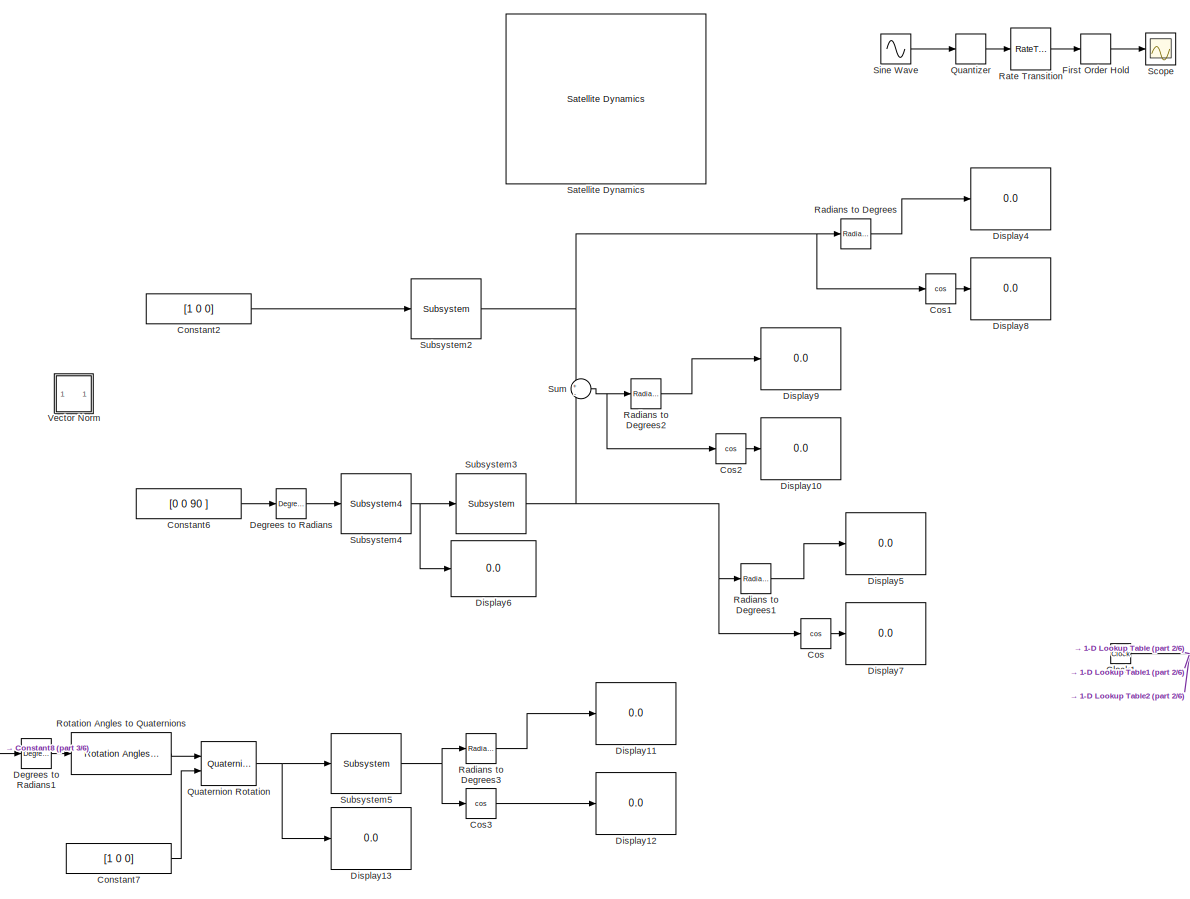
[diagram: root canvas - part 1/6, top left region]
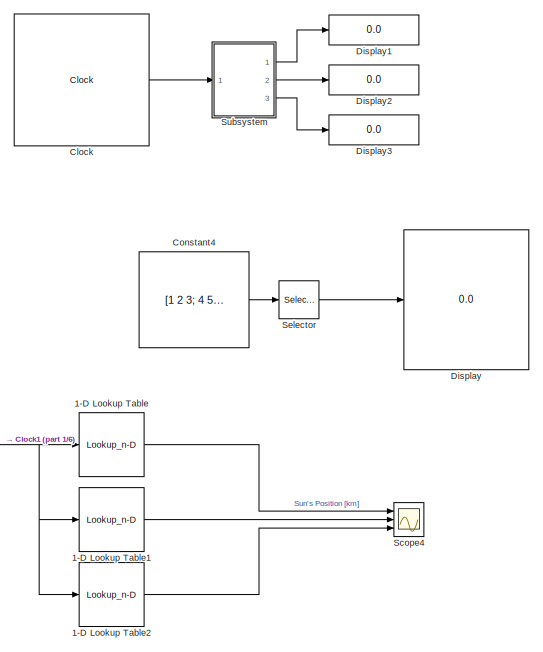
[diagram: root canvas - part 2/6, top center region]
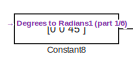
[diagram: root canvas - part 3/6, middle left region]
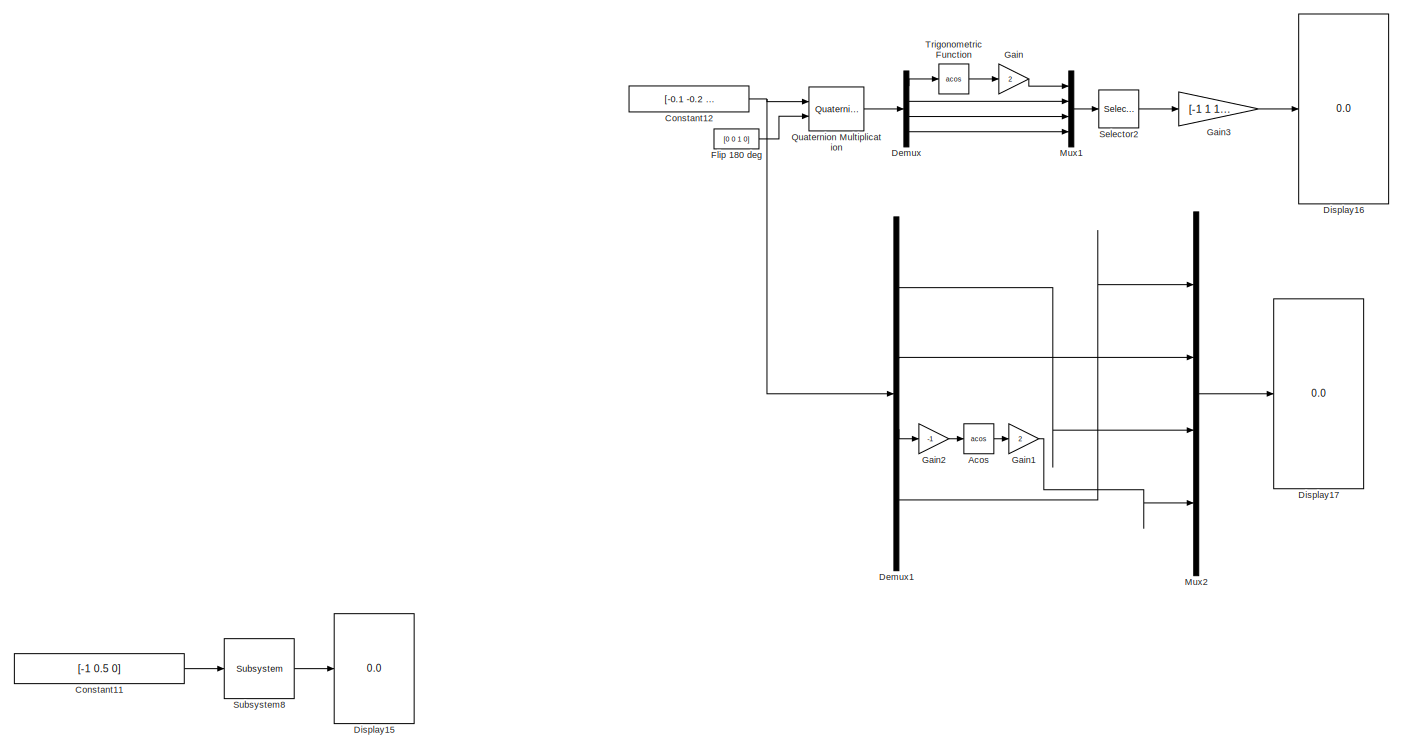
[diagram: root canvas - part 4/6, bottom right region]
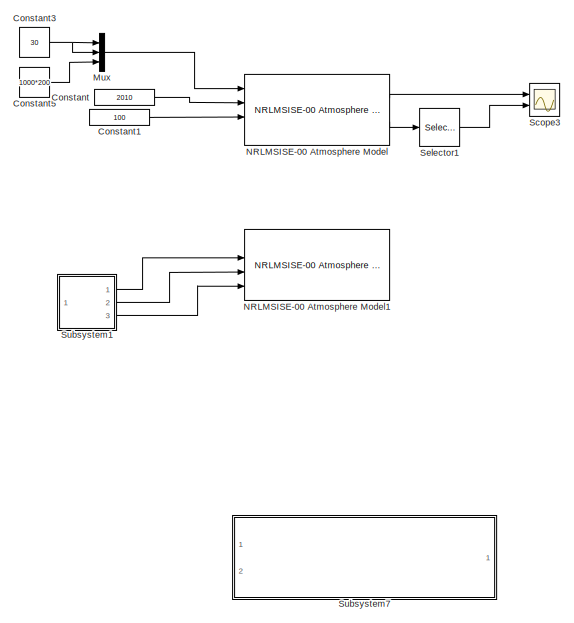
[diagram: root canvas - part 5/6, bottom center region]
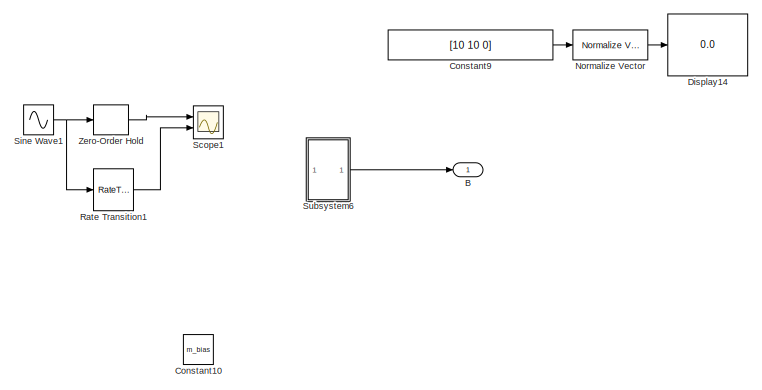
[diagram: root canvas - part 6/6, bottom left region]
MODEL slx_73f9de509a34
KIND model
CONFIG AbsTol = auto
CONFIG EnableMultiTasking = off
CONFIG FixedStep = 0.01
CONFIG MaxStep = auto
CONFIG MinStep = auto
CONFIG RelTol = 1e-3
CONFIG SampleTimeConstraint = Unconstrained
CONFIG Solver = FixedStepAuto
CONFIG SolverName = FixedStepAuto
CONFIG StartTime = 0.0
CONFIG StopTime = 30
BLOCK [Lookup_n-D] 1-D Lookup Table
  BreakpointsForDimension1 = [0:dT:TFinal]
  Commented = on
  InternalRulePriority = Speed
  NumberOfTableDimensions = 1
  Ports = [1, 1]
  RndMeth = Simplest
  Table = sun_position(:,1)
BLOCK [Lookup_n-D] 1-D Lookup Table1
  BreakpointsForDimension1 = [0:dT:TFinal]
  Commented = on
  InternalRulePriority = Speed
  NumberOfTableDimensions = 1
  Ports = [1, 1]
  RndMeth = Simplest
  Table = sun_position(:,2)
BLOCK [Lookup_n-D] 1-D Lookup Table2
  BreakpointsForDimension1 = [0:dT:TFinal]
  Commented = on
  InternalRulePriority = Speed
  NumberOfTableDimensions = 1
  Ports = [1, 1]
  RndMeth = Simplest
  Table = sun_position(:,3)
BLOCK [Trigonometry] Acos
  Operator = acos
  Ports = [1, 1]
BLOCK [Outport] B
  IconDisplay = Port number
BLOCK [Clock] Clock
  Commented = on
  Decimation = 100
  DisplayTime = on
BLOCK [Clock] Clock1
  Commented = on
BLOCK [Constant] Constant
  Commented = on
  Value = 2010
BLOCK [Constant] Constant1
  Commented = on
  Value = 100
BLOCK [Constant] Constant10
  Commented = on
  Value = m_bias
BLOCK [Constant] Constant11
  Commented = on
  Value = [-1 0.5 0]
BLOCK [Constant] Constant12
  Value = [-0.1 -0.2 -0.3 -0.4]
BLOCK [Constant] Constant2
  Commented = on
  Value = [1 0 0]
BLOCK [Constant] Constant3
  Commented = on
  Value = 30
BLOCK [Constant] Constant4
  Commented = on
  Value = [1 2 3; 4 5 6]
BLOCK [Constant] Constant5
  Commented = on
  Value = 1000*200
BLOCK [Constant] Constant6
  Commented = on
  Value = [0 0 90 ]
BLOCK [Constant] Constant7
  Commented = on
  Value = [1 0 0]
BLOCK [Constant] Constant8
  Commented = on
  Value = [0 0 45 ]
BLOCK [Constant] Constant9
  Commented = on
  Value = [10 10 0]
BLOCK [Trigonometry] Cos
  Commented = on
  Operator = cos
  Ports = [1, 1]
BLOCK [Trigonometry] Cos1
  Commented = on
  Operator = cos
  Ports = [1, 1]
BLOCK [Trigonometry] Cos2
  Commented = on
  Operator = cos
  Ports = [1, 1]
BLOCK [Trigonometry] Cos3
  Commented = on
  Operator = cos
  Ports = [1, 1]
BLOCK [Reference] Degrees to Radians  REF=simulink_extras/Transformations/Degrees to
Radians
  Commented = on
  Ports = [1, 1]
  SourceBlock = simulink_extras/Transformations/Degrees to\nRadians
  SourceProductBaseCode = SL
  SourceProductName = Simulink
  SourceType = DegreesToRadians
BLOCK [Reference] Degrees to Radians1  REF=simulink_extras/Transformations/Degrees to
Radians
  Commented = on
  Ports = [1, 1]
  SourceBlock = simulink_extras/Transformations/Degrees to\nRadians
  SourceProductBaseCode = SL
  SourceProductName = Simulink
  SourceType = DegreesToRadians
BLOCK [Demux] Demux
  DisplayOption = bar
  Ports = [1, 4]
BLOCK [Demux] Demux1
  DisplayOption = bar
  Ports = [1, 4]
BLOCK [Display] Display
  Commented = on
  Decimation = 1
  Ports = [1]
BLOCK [Display] Display1
  Commented = on
  Decimation = 1
  Ports = [1]
BLOCK [Display] Display10
  Commented = on
  Decimation = 1
  Ports = [1]
BLOCK [Display] Display11
  Commented = on
  Decimation = 1
  Ports = [1]
BLOCK [Display] Display12
  Commented = on
  Decimation = 1
  Ports = [1]
BLOCK [Display] Display13
  Commented = on
  Decimation = 1
  Ports = [1]
BLOCK [Display] Display14
  Commented = on
  Decimation = 1
  Ports = [1]
BLOCK [Display] Display15
  Commented = on
  Decimation = 1
  Ports = [1]
BLOCK [Display] Display16
  Decimation = 1
  Ports = [1]
BLOCK [Display] Display17
  Decimation = 1
  Ports = [1]
BLOCK [Display] Display2
  Commented = on
  Decimation = 1
  Ports = [1]
BLOCK [Display] Display3
  Commented = on
  Decimation = 1
  Ports = [1]
BLOCK [Display] Display4
  Commented = on
  Decimation = 1
  Ports = [1]
BLOCK [Display] Display5
  Commented = on
  Decimation = 1
  Ports = [1]
BLOCK [Display] Display6
  Commented = on
  Decimation = 1
  Ports = [1]
BLOCK [Display] Display7
  Commented = on
  Decimation = 1
  Ports = [1]
BLOCK [Display] Display8
  Commented = on
  Decimation = 1
  Ports = [1]
BLOCK [Display] Display9
  Commented = on
  Decimation = 1
  Ports = [1]
BLOCK [FirstOrderHold] First Order Hold
  Commented = on
  ErrorTolerance = inf
BLOCK [Constant] Flip 180 deg
  Value = [0 0 1 0]
BLOCK [Gain] Gain
  Gain = 2
  OutDataTypeStr = Inherit: Inherit via internal rule
  ParamDataTypeStr = Inherit: Inherit via internal rule
  SaturateOnIntegerOverflow = off
BLOCK [Gain] Gain1
  Gain = 2
  OutDataTypeStr = Inherit: Inherit via internal rule
  ParamDataTypeStr = Inherit: Inherit via internal rule
  SaturateOnIntegerOverflow = off
BLOCK [Gain] Gain2
  Gain = -1
  OutDataTypeStr = Inherit: Inherit via internal rule
  ParamDataTypeStr = Inherit: Inherit via internal rule
  SaturateOnIntegerOverflow = off
BLOCK [Gain] Gain3
  Gain = [-1 1 1 1]
  OutDataTypeStr = Inherit: Inherit via internal rule
  ParamDataTypeStr = Inherit: Inherit via internal rule
  SaturateOnIntegerOverflow = off
BLOCK [Mux] Mux
  Commented = on
  DisplayOption = bar
  Inputs = 3
  Ports = [3, 1]
BLOCK [Mux] Mux1
  DisplayOption = bar
  Ports = [4, 1]
BLOCK [Mux] Mux2
  DisplayOption = bar
  Ports = [4, 1]
BLOCK [Reference] NRLMSISE-00 Atmosphere Model  REF=aerolibatmos2/NRLMSISE-00
Atmosphere Model
  Commented = on
  Ports = [4, 2]
  SourceBlock = aerolibatmos2/NRLMSISE-00\nAtmosphere Model
  SourceProductBaseCode = AE
  SourceProductName = Aerospace Blockset
  SourceType = NRLMSISE-00 Model
BLOCK [Reference] NRLMSISE-00 Atmosphere Model1  REF=aerolibatmos2/NRLMSISE-00
Atmosphere Model
  Commented = on
  Ports = [4, 2]
  SourceBlock = aerolibatmos2/NRLMSISE-00\nAtmosphere Model
  SourceProductBaseCode = AE
  SourceProductName = Aerospace Blockset
  SourceType = NRLMSISE-00 Model
BLOCK [Reference] Normalize Vector  REF=vrlib/Utilities/Normalize Vector
  Commented = on
  Ports = [1, 1]
  SourceBlock = vrlib/Utilities/Normalize Vector
  SourceProductBaseCode = SL
  SourceProductName = Simulink
  SourceType = Normalize Vector
BLOCK [Quantizer] Quantizer
  Commented = on
  QuantizationInterval = 0.01
BLOCK [Reference] Quaternion Multiplication  REF=aerolibutil/Quaternion
Multiplication
  Ports = [2, 1]
  SourceBlock = aerolibutil/Quaternion\nMultiplication
  SourceProductBaseCode = AE
  SourceProductName = Aerospace Blockset
  SourceType = Quaternion Multiplication
BLOCK [Reference] Quaternion Rotation  REF=aerolibutil/Quaternion
Rotation
  Commented = on
  Ports = [2, 1]
  SourceBlock = aerolibutil/Quaternion\nRotation
  SourceProductBaseCode = AE
  SourceProductName = Aerospace Blockset
  SourceType = Quaternion Rotation
BLOCK [Reference] Radians to Degrees  REF=simulink_extras/Transformations/Radians
to Degrees
  Commented = on
  Ports = [1, 1]
  SourceBlock = simulink_extras/Transformations/Radians\nto Degrees
  SourceProductBaseCode = SL
  SourceProductName = Simulink
  SourceType = RadiansToDegrees
BLOCK [Reference] Radians to Degrees1  REF=simulink_extras/Transformations/Radians
to Degrees
  Commented = on
  Ports = [1, 1]
  SourceBlock = simulink_extras/Transformations/Radians\nto Degrees
  SourceProductBaseCode = SL
  SourceProductName = Simulink
  SourceType = RadiansToDegrees
BLOCK [Reference] Radians to Degrees2  REF=simulink_extras/Transformations/Radians
to Degrees
  Commented = on
  Ports = [1, 1]
  SourceBlock = simulink_extras/Transformations/Radians\nto Degrees
  SourceProductBaseCode = SL
  SourceProductName = Simulink
  SourceType = RadiansToDegrees
BLOCK [Reference] Radians to Degrees3  REF=simulink_extras/Transformations/Radians
to Degrees
  Commented = on
  Ports = [1, 1]
  SourceBlock = simulink_extras/Transformations/Radians\nto Degrees
  SourceProductBaseCode = SL
  SourceProductName = Simulink
  SourceType = RadiansToDegrees
BLOCK [RateTransition] Rate Transition
  Commented = on
  OutPortSampleTime = 0.1
BLOCK [RateTransition] Rate Transition1
  Commented = on
  OutPortSampleTime = 0.3
BLOCK [Reference] Rotation Angles to Quaternions  REF=sharedtransform/Rotation Angles to Quaternions
  AttributesFormatString = Rotation Order: %<rotationOrder>
  Commented = on
  Ports = [1, 1]
  SourceBlock = sharedtransform/Rotation Angles to Quaternions
  SourceProductBaseCode = AE
  SourceProductName = Aerospace Blockset
  SourceType = Ang2Quat
BLOCK [Reference] Satellite Dynamics  REF=scars_library/Advanced/Satellite Dynamics  (lib defined in slx_0992aaab4a30)
  Commented = on
  Ports = [4, 1]
  SourceBlock = scars_library/Advanced/Satellite Dynamics
  SourceType = Sattellite Dynamics
BLOCK [Scope] Scope
  Commented = on
  Floating = off
  NumInputPorts = 1
  Ports = [1]
  ScopeSpecificationString = Simulink.scopes.TimeScopeBlockCfg('CurrentConfiguration', extmgr.ConfigurationSet(extmgr.Configuration('Core','General UI',true),extmgr.Configuration('Core','Source UI',true),extmgr.Configuration('Sources','WiredSimulink',true),extmgr.Configuration('Visuals','Time Domain',true,'SerializedDisplays',{struct('MinYLimReal','-1.24986','MaxYLimReal','1.24951','YLabelReal','','MinYLimMag','0.00000','MaxY...<+1366ch>
BLOCK [Scope] Scope1
  Commented = on
  Floating = off
  NumInputPorts = 2
  Ports = [2]
  ScopeSpecificationString = Simulink.scopes.TimeScopeBlockCfg('CurrentConfiguration', extmgr.ConfigurationSet(extmgr.Configuration('Core','General UI',true),extmgr.Configuration('Core','Source UI',true),extmgr.Configuration('Sources','WiredSimulink',true,'DataLoggingVariableName','ScopeData1'),extmgr.Configuration('Visuals','Time Domain',true,'SerializedDisplays',{struct('MinYLimReal','-1.2455','MaxYLimReal','1.24788','YLabe...<+1454ch>
BLOCK [Scope] Scope3
  Commented = on
  Floating = off
  NumInputPorts = 2
  Ports = [2]
  ScopeSpecificationString = Simulink.scopes.TimeScopeBlockCfg('CurrentConfiguration', extmgr.ConfigurationSet(extmgr.Configuration('Core','General UI',true),extmgr.Configuration('Core','Source UI',true),extmgr.Configuration('Sources','WiredSimulink',true,'DataLoggingVariableName','ScopeData2'),extmgr.Configuration('Visuals','Time Domain',true,'SerializedDisplays',{struct('MinYLimReal','69.74491','MaxYLimReal','1238.07333','Y...<+2511ch>
BLOCK [Scope] Scope4
  Commented = on
  Floating = off
  NumInputPorts = 3
  Ports = [3]
  ScopeSpecificationString = Simulink.scopes.TimeScopeBlockCfg('CurrentConfiguration', extmgr.ConfigurationSet(extmgr.Configuration('Core','General UI',true),extmgr.Configuration('Core','Source UI',true),extmgr.Configuration('Sources','WiredSimulink',true,'DataLoggingVariableName','ScopeData1'),extmgr.Configuration('Visuals','Time Domain',true,'SerializedDisplays',{struct('MinYLimReal','-187532987.97497','MaxYLimReal','186420...<+1533ch>
BLOCK [Selector] Selector
  Commented = on
  IndexOptions = Index vector (dialog),Select all
  Indices = 1,3
  InputPortWidth = 2
  NumberOfDimensions = 2
  OutputSizes = 1,1
  Ports = [1, 1]
BLOCK [Selector] Selector1
  Commented = on
  IndexOptions = Index vector (dialog)
  Indices = 6
  InputPortWidth = 9
  OutputSizes = 1
  Ports = [1, 1]
BLOCK [Selector] Selector2
  IndexOptions = Index vector (dialog)
  Indices = [2 4 3 1]
  InputPortWidth = 4
  OutputSizes = 1
  Ports = [1, 1]
BLOCK [Sin] Sine Wave
  Commented = on
  Ports = [0, 1]
  SampleTime = 0
BLOCK [Sin] Sine Wave1
  Commented = on
  Ports = [0, 1]
  SampleTime = 0
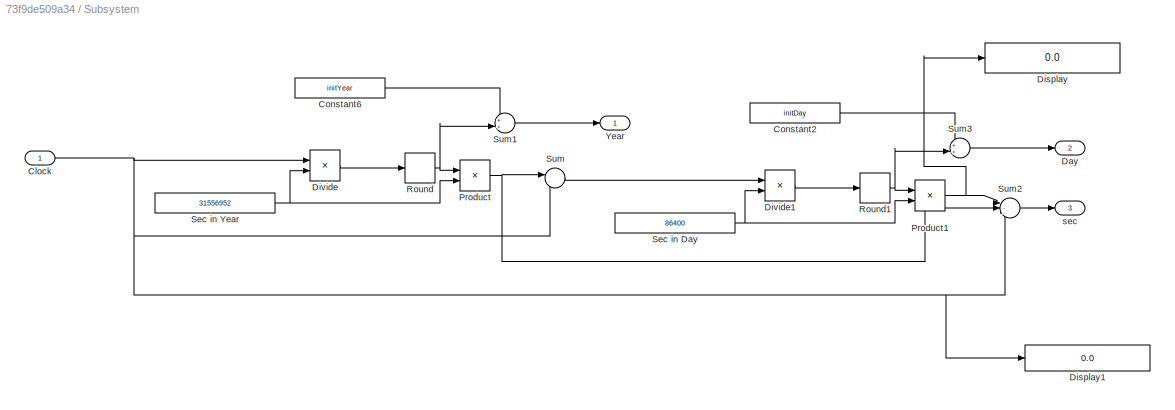
BLOCK [SubSystem] Subsystem
  Commented = on
  Ports = [1, 3]
  RequestExecContextInheritance = off
BLOCK [Inport] Subsystem/Clock
  IconDisplay = Port number
BLOCK [Constant] Subsystem/Constant2
  Value = initDay
BLOCK [Constant] Subsystem/Constant6
  Value = initYear
BLOCK [Outport] Subsystem/Day
  IconDisplay = Port number
  Port = 2
BLOCK [Display] Subsystem/Display
  Decimation = 1
  Format = long
  Ports = [1]
BLOCK [Display] Subsystem/Display1
  Decimation = 1
  Format = long
  Ports = [1]
BLOCK [Product] Subsystem/Divide
  InputSameDT = off
  Inputs = */
  OutDataTypeStr = Inherit: Inherit via internal rule
  Ports = [2, 1]
  RndMeth = Floor
  SaturateOnIntegerOverflow = off
BLOCK [Product] Subsystem/Divide1
  InputSameDT = off
  Inputs = */
  OutDataTypeStr = Inherit: Inherit via internal rule
  Ports = [2, 1]
  RndMeth = Floor
  SaturateOnIntegerOverflow = off
BLOCK [Product] Subsystem/Product
  InputSameDT = off
  OutDataTypeStr = Inherit: Inherit via internal rule
  Ports = [2, 1]
  RndMeth = Floor
  SaturateOnIntegerOverflow = off
BLOCK [Product] Subsystem/Product1
  InputSameDT = off
  OutDataTypeStr = Inherit: Inherit via internal rule
  Ports = [2, 1]
  RndMeth = Floor
  SaturateOnIntegerOverflow = off
BLOCK [Rounding] Subsystem/Round
BLOCK [Rounding] Subsystem/Round1
BLOCK [Constant] Subsystem/Sec in Day
  Value = 86400
BLOCK [Constant] Subsystem/Sec in Year
  Value = 31556952
BLOCK [Sum] Subsystem/Sum
  IconShape = round
  InputSameDT = off
  Inputs = |-+
  OutDataTypeStr = Inherit: Inherit via internal rule
  Ports = [2, 1]
  SaturateOnIntegerOverflow = off
BLOCK [Sum] Subsystem/Sum1
  IconShape = round
  InputSameDT = off
  Inputs = ++|
  OutDataTypeStr = Inherit: Inherit via internal rule
  Ports = [2, 1]
  SaturateOnIntegerOverflow = off
BLOCK [Sum] Subsystem/Sum2
  IconShape = round
  InputSameDT = off
  Inputs = |--+
  OutDataTypeStr = Inherit: Inherit via internal rule
  Ports = [3, 1]
  SaturateOnIntegerOverflow = off
BLOCK [Sum] Subsystem/Sum3
  IconShape = round
  InputSameDT = off
  Inputs = ++|
  OutDataTypeStr = Inherit: Inherit via internal rule
  Ports = [2, 1]
  SaturateOnIntegerOverflow = off
BLOCK [Outport] Subsystem/Year
  IconDisplay = Port number
BLOCK [Outport] Subsystem/sec
  IconDisplay = Port number
  Port = 3
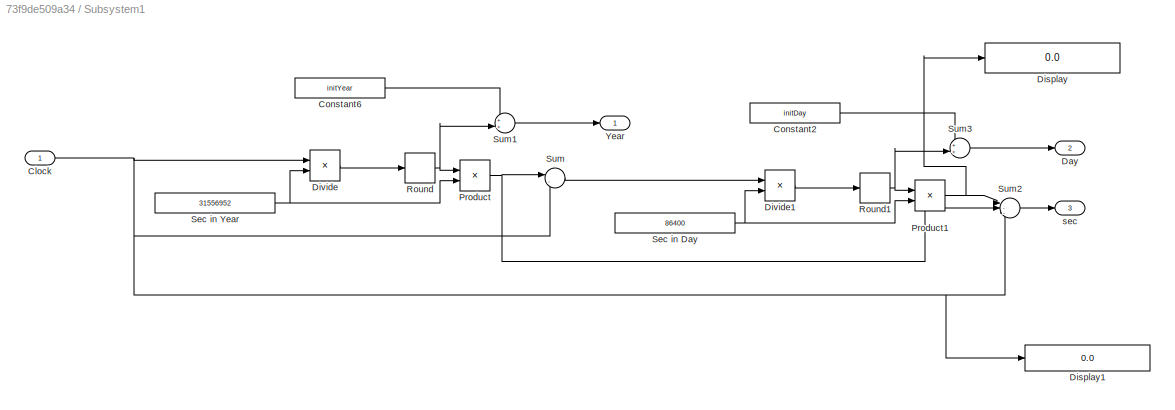
BLOCK [SubSystem] Subsystem1
  Commented = on
  Ports = [1, 3]
  RequestExecContextInheritance = off
BLOCK [Inport] Subsystem1/Clock
  IconDisplay = Port number
BLOCK [Constant] Subsystem1/Constant2
  Value = initDay
BLOCK [Constant] Subsystem1/Constant6
  Value = initYear
BLOCK [Outport] Subsystem1/Day
  IconDisplay = Port number
  Port = 2
BLOCK [Display] Subsystem1/Display
  Decimation = 1
  Format = long
  Ports = [1]
BLOCK [Display] Subsystem1/Display1
  Decimation = 1
  Format = long
  Ports = [1]
BLOCK [Product] Subsystem1/Divide
  InputSameDT = off
  Inputs = */
  OutDataTypeStr = Inherit: Inherit via internal rule
  Ports = [2, 1]
  RndMeth = Floor
  SaturateOnIntegerOverflow = off
BLOCK [Product] Subsystem1/Divide1
  InputSameDT = off
  Inputs = */
  OutDataTypeStr = Inherit: Inherit via internal rule
  Ports = [2, 1]
  RndMeth = Floor
  SaturateOnIntegerOverflow = off
BLOCK [Product] Subsystem1/Product
  InputSameDT = off
  OutDataTypeStr = Inherit: Inherit via internal rule
  Ports = [2, 1]
  RndMeth = Floor
  SaturateOnIntegerOverflow = off
BLOCK [Product] Subsystem1/Product1
  InputSameDT = off
  OutDataTypeStr = Inherit: Inherit via internal rule
  Ports = [2, 1]
  RndMeth = Floor
  SaturateOnIntegerOverflow = off
BLOCK [Rounding] Subsystem1/Round
BLOCK [Rounding] Subsystem1/Round1
BLOCK [Constant] Subsystem1/Sec in Day
  Value = 86400
BLOCK [Constant] Subsystem1/Sec in Year
  Value = 31556952
BLOCK [Sum] Subsystem1/Sum
  IconShape = round
  InputSameDT = off
  Inputs = |-+
  OutDataTypeStr = Inherit: Inherit via internal rule
  Ports = [2, 1]
  SaturateOnIntegerOverflow = off
BLOCK [Sum] Subsystem1/Sum1
  IconShape = round
  InputSameDT = off
  Inputs = ++|
  OutDataTypeStr = Inherit: Inherit via internal rule
  Ports = [2, 1]
  SaturateOnIntegerOverflow = off
BLOCK [Sum] Subsystem1/Sum2
  IconShape = round
  InputSameDT = off
  Inputs = |--+
  OutDataTypeStr = Inherit: Inherit via internal rule
  Ports = [3, 1]
  SaturateOnIntegerOverflow = off
BLOCK [Sum] Subsystem1/Sum3
  IconShape = round
  InputSameDT = off
  Inputs = ++|
  OutDataTypeStr = Inherit: Inherit via internal rule
  Ports = [2, 1]
  SaturateOnIntegerOverflow = off
BLOCK [Outport] Subsystem1/Year
  IconDisplay = Port number
BLOCK [Outport] Subsystem1/sec
  IconDisplay = Port number
  Port = 3
BLOCK [Reference] Subsystem2  REF=scars_library/Subsystem  (lib defined in slx_0992aaab4a30)
  Commented = on
  Ports = [1, 1]
  SourceBlock = scars_library/Subsystem
  SourceType = SubSystem
BLOCK [Reference] Subsystem3  REF=scars_library/Subsystem  (lib defined in slx_0992aaab4a30)
  Commented = on
  Ports = [1, 1]
  SourceBlock = scars_library/Subsystem
  SourceType = SubSystem
BLOCK [Reference] Subsystem4  REF=scars_library/Subsystem4  (lib defined in slx_0992aaab4a30)
  Commented = on
  Ports = [1, 1]
  SourceBlock = scars_library/Subsystem4
  SourceType = SubSystem
BLOCK [Reference] Subsystem5  REF=scars_library/Subsystem  (lib defined in slx_0992aaab4a30)
  Commented = on
  Ports = [1, 1]
  SourceBlock = scars_library/Subsystem
  SourceType = SubSystem
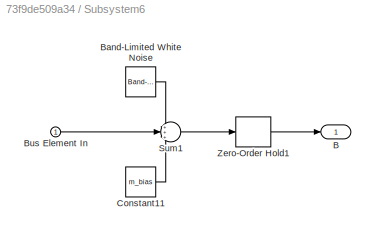
BLOCK [SubSystem] Subsystem6
  Commented = on
  Ports = [1, 1]
  RequestExecContextInheritance = off
BLOCK [Outport] Subsystem6/B
  IconDisplay = Port number
BLOCK [Reference] Subsystem6/Band-Limited White Noise  REF=simulink/Sources/Band-Limited
White Noise
  Ports = [0, 1]
  SourceBlock = simulink/Sources/Band-Limited\nWhite Noise
  SourceProductBaseCode = SL
  SourceProductName = Simulink
  SourceType = Band-Limited White Noise.
BLOCK [Inport] Subsystem6/Bus Element In
  IconDisplay = Port number
BLOCK [Constant] Subsystem6/Constant11
  Value = m_bias
BLOCK [Sum] Subsystem6/Sum1
  IconShape = round
  InputSameDT = off
  Inputs = +++
  OutDataTypeStr = Inherit: Inherit via internal rule
  Ports = [3, 1]
  SaturateOnIntegerOverflow = off
BLOCK [ZeroOrderHold] Subsystem6/Zero-Order Hold1
  SampleTime = 1/m_freq
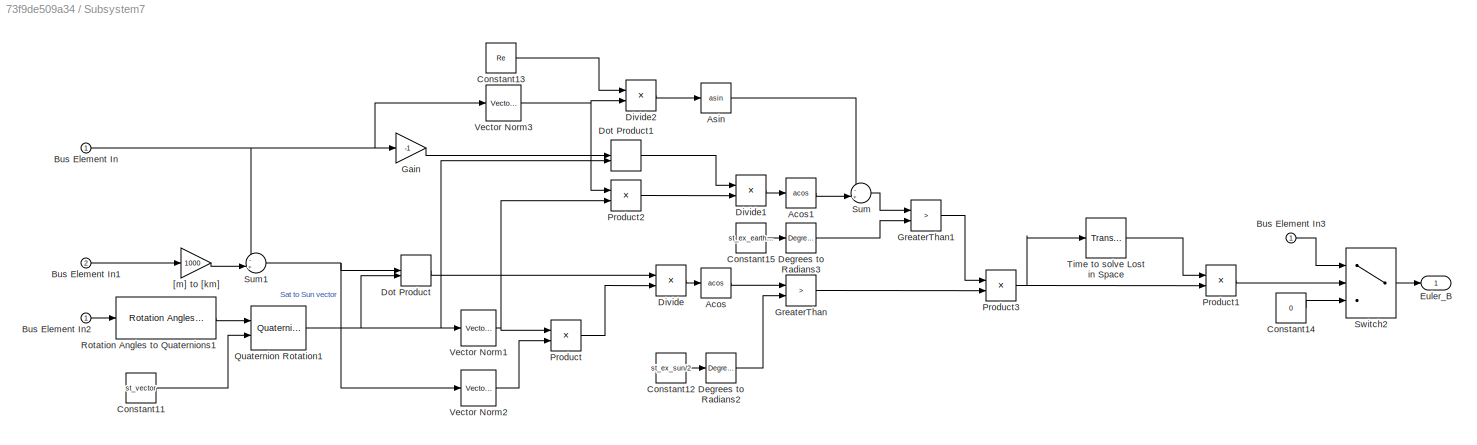
BLOCK [SubSystem] Subsystem7
  Commented = on
  Ports = [2, 1]
  RequestExecContextInheritance = off
BLOCK [Trigonometry] Subsystem7/Acos
  Operator = acos
  Ports = [1, 1]
BLOCK [Trigonometry] Subsystem7/Acos1
  Operator = acos
  Ports = [1, 1]
BLOCK [Trigonometry] Subsystem7/Asin
  Operator = asin
  Ports = [1, 1]
BLOCK [Inport] Subsystem7/Bus Element In
  IconDisplay = Port number
BLOCK [Inport] Subsystem7/Bus Element In1
  IconDisplay = Port number
  Port = 2
BLOCK [Inport] Subsystem7/Bus Element In2
  IconDisplay = Port number
BLOCK [Inport] Subsystem7/Bus Element In3
  IconDisplay = Port number
BLOCK [Constant] Subsystem7/Constant11
  Value = st_vector
BLOCK [Constant] Subsystem7/Constant12
  Value = st_ex_sun/2
BLOCK [Constant] Subsystem7/Constant13
  Value = Re
BLOCK [Constant] Subsystem7/Constant14
  Value = 0
BLOCK [Constant] Subsystem7/Constant15
  Value = st_ex_earth/2
BLOCK [Reference] Subsystem7/Degrees to Radians2  REF=simulink_extras/Transformations/Degrees to
Radians
  Ports = [1, 1]
  SourceBlock = simulink_extras/Transformations/Degrees to\nRadians
  SourceProductBaseCode = SL
  SourceProductName = Simulink
  SourceType = DegreesToRadians
BLOCK [Reference] Subsystem7/Degrees to Radians3  REF=simulink_extras/Transformations/Degrees to
Radians
  Ports = [1, 1]
  SourceBlock = simulink_extras/Transformations/Degrees to\nRadians
  SourceProductBaseCode = SL
  SourceProductName = Simulink
  SourceType = DegreesToRadians
BLOCK [Product] Subsystem7/Divide
  InputSameDT = off
  Inputs = */
  OutDataTypeStr = Inherit: Inherit via internal rule
  Ports = [2, 1]
  RndMeth = Floor
  SaturateOnIntegerOverflow = off
BLOCK [Product] Subsystem7/Divide1
  InputSameDT = off
  Inputs = */
  OutDataTypeStr = Inherit: Inherit via internal rule
  Ports = [2, 1]
  RndMeth = Floor
  SaturateOnIntegerOverflow = off
BLOCK [Product] Subsystem7/Divide2
  InputSameDT = off
  Inputs = */
  OutDataTypeStr = Inherit: Inherit via internal rule
  Ports = [2, 1]
  RndMeth = Floor
  SaturateOnIntegerOverflow = off
BLOCK [DotProduct] Subsystem7/Dot Product
  OutDataTypeStr = Inherit: Inherit via internal rule
BLOCK [DotProduct] Subsystem7/Dot Product1
  OutDataTypeStr = Inherit: Inherit via internal rule
BLOCK [Outport] Subsystem7/Euler_B
  IconDisplay = Port number
BLOCK [Gain] Subsystem7/Gain
  Gain = -1
  OutDataTypeStr = Inherit: Inherit via internal rule
  ParamDataTypeStr = Inherit: Inherit via internal rule
  SaturateOnIntegerOverflow = off
BLOCK [RelationalOperator] Subsystem7/GreaterThan
  InputSameDT = off
  Operator = >
  OutDataTypeStr = boolean
  Ports = [2, 1]
  RndMeth = Simplest
BLOCK [RelationalOperator] Subsystem7/GreaterThan1
  InputSameDT = off
  Operator = >
  OutDataTypeStr = boolean
  Ports = [2, 1]
  RndMeth = Simplest
BLOCK [Product] Subsystem7/Product
  InputSameDT = off
  OutDataTypeStr = Inherit: Inherit via internal rule
  Ports = [2, 1]
  RndMeth = Floor
  SaturateOnIntegerOverflow = off
BLOCK [Product] Subsystem7/Product1
  InputSameDT = off
  OutDataTypeStr = Inherit: Inherit via internal rule
  Ports = [2, 1]
  RndMeth = Floor
  SaturateOnIntegerOverflow = off
BLOCK [Product] Subsystem7/Product2
  InputSameDT = off
  OutDataTypeStr = Inherit: Inherit via internal rule
  Ports = [2, 1]
  RndMeth = Floor
  SaturateOnIntegerOverflow = off
BLOCK [Product] Subsystem7/Product3
  InputSameDT = off
  OutDataTypeStr = Inherit: Inherit via internal rule
  Ports = [2, 1]
  RndMeth = Floor
  SaturateOnIntegerOverflow = off
BLOCK [Reference] Subsystem7/Quaternion Rotation1  REF=aerolibutil/Quaternion
Rotation
  Ports = [2, 1]
  SourceBlock = aerolibutil/Quaternion\nRotation
  SourceProductBaseCode = AE
  SourceProductName = Aerospace Blockset
  SourceType = Quaternion Rotation
BLOCK [Reference] Subsystem7/Rotation Angles to Quaternions1  REF=sharedtransform/Rotation Angles to Quaternions
  AttributesFormatString = Rotation Order: %<rotationOrder>
  Ports = [1, 1]
  SourceBlock = sharedtransform/Rotation Angles to Quaternions
  SourceProductBaseCode = AE
  SourceProductName = Aerospace Blockset
  SourceType = Ang2Quat
BLOCK [Sum] Subsystem7/Sum
  IconShape = round
  InputSameDT = off
  Inputs = -+|
  OutDataTypeStr = Inherit: Inherit via internal rule
  Ports = [2, 1]
  SaturateOnIntegerOverflow = off
BLOCK [Sum] Subsystem7/Sum1
  IconShape = round
  InputSameDT = off
  Inputs = -+|
  OutDataTypeStr = Inherit: Inherit via internal rule
  Ports = [2, 1]
  SaturateOnIntegerOverflow = off
BLOCK [Switch] Subsystem7/Switch2
  InputSameDT = off
  SaturateOnIntegerOverflow = off
  Threshold = 1
BLOCK [TransportDelay] Subsystem7/Time to solve Lost in Space
  DelayTime = st_lost
  InitialOutput = 1
  Ports = [1, 1]
BLOCK [Reference] Subsystem7/Vector Norm1  REF=scars_library/Vector Norm  (lib defined in slx_0992aaab4a30)
  Ports = [1, 1]
  SourceBlock = scars_library/Vector Norm
  SourceType = SubSystem
BLOCK [Reference] Subsystem7/Vector Norm2  REF=scars_library/Vector Norm  (lib defined in slx_0992aaab4a30)
  Ports = [1, 1]
  SourceBlock = scars_library/Vector Norm
  SourceType = SubSystem
BLOCK [Reference] Subsystem7/Vector Norm3  REF=scars_library/Vector Norm  (lib defined in slx_0992aaab4a30)
  Ports = [1, 1]
  SourceBlock = scars_library/Vector Norm
  SourceType = SubSystem
BLOCK [Gain] Subsystem7/[m] to [km]
  Gain = 1000
  OutDataTypeStr = Inherit: Inherit via internal rule
  ParamDataTypeStr = Inherit: Inherit via internal rule
  SaturateOnIntegerOverflow = off
BLOCK [Reference] Subsystem8  REF=scars_library/Subsystem  (lib defined in slx_0992aaab4a30)
  Commented = on
  Ports = [1, 1]
  SourceBlock = scars_library/Subsystem
  SourceType = SubSystem
BLOCK [Sum] Sum
  Commented = on
  IconShape = round
  InputSameDT = off
  Inputs = +|-
  OutDataTypeStr = Inherit: Inherit via internal rule
  Ports = [2, 1]
  SaturateOnIntegerOverflow = off
BLOCK [Trigonometry] Trigonometric Function
  Operator = acos
  Ports = [1, 1]
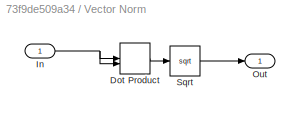
BLOCK [SubSystem] Vector Norm
  Commented = on
  Ports = [1, 1]
  RequestExecContextInheritance = off
BLOCK [DotProduct] Vector Norm/Dot Product
  OutDataTypeStr = Inherit: Inherit via internal rule
BLOCK [Inport] Vector Norm/In
  IconDisplay = Port number
BLOCK [Outport] Vector Norm/Out
  IconDisplay = Port number
BLOCK [Sqrt] Vector Norm/Sqrt
BLOCK [ZeroOrderHold] Zero-Order Hold
  Commented = on
  SampleTime = 0.3
LINE 1-D Lookup Table1:1 -> Scope4:2
LINE 1-D Lookup Table2:1 -> Scope4:3
LINE 1-D Lookup Table:1 -> Scope4:1
LINE Acos:1 -> Gain1:1
NET Clock1:1 -> 1-D Lookup Table1:1, 1-D Lookup Table2:1, 1-D Lookup Table:1
LINE Clock:1 -> Subsystem:1
LINE Constant11:1 -> Subsystem8:1
NET Constant12:1 -> Demux1:1, Quaternion Multiplication:1
LINE Constant1:1 -> NRLMSISE-00 Atmosphere Model:3
LINE Constant2:1 -> Subsystem2:1
NET Constant3:1 -> Mux:1, Mux:2
LINE Constant4:1 -> Selector:1
LINE Constant5:1 -> Mux:3
LINE Constant6:1 -> Degrees to Radians:1
LINE Constant7:1 -> Quaternion Rotation:2
LINE Constant8:1 -> Degrees to Radians1:1
LINE Constant9:1 -> Normalize Vector:1
LINE Constant:1 -> NRLMSISE-00 Atmosphere Model:2
LINE Cos1:1 -> Display8:1
LINE Cos2:1 -> Display10:1
LINE Cos3:1 -> Display12:1
LINE Cos:1 -> Display7:1
LINE Degrees to Radians1:1 -> Rotation Angles to Quaternions:1
LINE Degrees to Radians:1 -> Subsystem4:1
LINE Demux1:1 -> Mux2:3
LINE Demux1:2 -> Mux2:2
LINE Demux1:3 -> Gain2:1
LINE Demux1:4 -> Mux2:1
LINE Demux:1 -> Trigonometric Function:1
LINE Demux:2 -> Mux1:2
LINE Demux:3 -> Mux1:3
LINE Demux:4 -> Mux1:4
LINE First Order Hold:1 -> Scope:1
LINE Flip 180 deg:1 -> Quaternion Multiplication:2
LINE Gain1:1 -> Mux2:4
LINE Gain2:1 -> Acos:1
LINE Gain3:1 -> Display16:1
LINE Gain:1 -> Mux1:1
LINE Mux1:1 -> Selector2:1
LINE Mux2:1 -> Display17:1
LINE Mux:1 -> NRLMSISE-00 Atmosphere Model:1
LINE NRLMSISE-00 Atmosphere Model:1 -> Scope3:1
LINE NRLMSISE-00 Atmosphere Model:2 -> Selector1:1
LINE Normalize Vector:1 -> Display14:1
LINE Quantizer:1 -> Rate Transition:1
LINE Quaternion Multiplication:1 -> Demux:1
NET Quaternion Rotation:1 -> Display13:1, Subsystem5:1
LINE Radians to Degrees1:1 -> Display5:1
LINE Radians to Degrees2:1 -> Display9:1
LINE Radians to Degrees3:1 -> Display11:1
LINE Radians to Degrees:1 -> Display4:1
LINE Rate Transition1:1 -> Scope1:2
LINE Rate Transition:1 -> First Order Hold:1
LINE Rotation Angles to Quaternions:1 -> Quaternion Rotation:1
LINE Selector1:1 -> Scope3:2
LINE Selector2:1 -> Gain3:1
LINE Selector:1 -> Display:1
NET Sine Wave1:1 -> Rate Transition1:1, Zero-Order Hold:1
LINE Sine Wave:1 -> Quantizer:1
NET Subsystem/Clock:1 -> Subsystem/Display1:1, Subsystem/Divide:1, Subsystem/Sum2:3, Subsystem/Sum:2
LINE Subsystem/Constant2:1 -> Subsystem/Sum3:1
LINE Subsystem/Constant6:1 -> Subsystem/Sum1:1
LINE Subsystem/Divide1:1 -> Subsystem/Round1:1
LINE Subsystem/Divide:1 -> Subsystem/Round:1
NET Subsystem/Product1:1 -> Subsystem/Display:1, Subsystem/Sum2:1
NET Subsystem/Product:1 -> Subsystem/Sum2:2, Subsystem/Sum:1
NET Subsystem/Round1:1 -> Subsystem/Product1:1, Subsystem/Sum3:2
NET Subsystem/Round:1 -> Subsystem/Product:1, Subsystem/Sum1:2
NET Subsystem/Sec in Day:1 -> Subsystem/Divide1:2, Subsystem/Product1:2
NET Subsystem/Sec in Year:1 -> Subsystem/Divide:2, Subsystem/Product:2
LINE Subsystem/Sum1:1 -> Subsystem/Year:1
LINE Subsystem/Sum2:1 -> Subsystem/sec:1
LINE Subsystem/Sum3:1 -> Subsystem/Day:1
LINE Subsystem/Sum:1 -> Subsystem/Divide1:1
NET Subsystem1/Clock:1 -> Subsystem1/Display1:1, Subsystem1/Divide:1, Subsystem1/Sum2:3, Subsystem1/Sum:2
LINE Subsystem1/Constant2:1 -> Subsystem1/Sum3:1
LINE Subsystem1/Constant6:1 -> Subsystem1/Sum1:1
LINE Subsystem1/Divide1:1 -> Subsystem1/Round1:1
LINE Subsystem1/Divide:1 -> Subsystem1/Round:1
NET Subsystem1/Product1:1 -> Subsystem1/Display:1, Subsystem1/Sum2:1
NET Subsystem1/Product:1 -> Subsystem1/Sum2:2, Subsystem1/Sum:1
NET Subsystem1/Round1:1 -> Subsystem1/Product1:1, Subsystem1/Sum3:2
NET Subsystem1/Round:1 -> Subsystem1/Product:1, Subsystem1/Sum1:2
NET Subsystem1/Sec in Day:1 -> Subsystem1/Divide1:2, Subsystem1/Product1:2
NET Subsystem1/Sec in Year:1 -> Subsystem1/Divide:2, Subsystem1/Product:2
LINE Subsystem1/Sum1:1 -> Subsystem1/Year:1
LINE Subsystem1/Sum2:1 -> Subsystem1/sec:1
LINE Subsystem1/Sum3:1 -> Subsystem1/Day:1
LINE Subsystem1/Sum:1 -> Subsystem1/Divide1:1
LINE Subsystem1:1 -> NRLMSISE-00 Atmosphere Model1:2
LINE Subsystem1:2 -> NRLMSISE-00 Atmosphere Model1:3
LINE Subsystem1:3 -> NRLMSISE-00 Atmosphere Model1:4
NET Subsystem2:1 -> Cos1:1, Radians to Degrees:1, Sum:1
NET Subsystem3:1 -> Cos:1, Radians to Degrees1:1, Sum:2
NET Subsystem4:1 -> Display6:1, Subsystem3:1
NET Subsystem5:1 -> Cos3:1, Radians to Degrees3:1
LINE Subsystem6/Band-Limited White Noise:1 -> Subsystem6/Sum1:1
LINE Subsystem6/Bus Element In:1 -> Subsystem6/Sum1:2
LINE Subsystem6/Constant11:1 -> Subsystem6/Sum1:3
LINE Subsystem6/Sum1:1 -> Subsystem6/Zero-Order Hold1:1
LINE Subsystem6/Zero-Order Hold1:1 -> Subsystem6/B:1
LINE Subsystem6:1 -> B:1
LINE Subsystem7/Acos1:1 -> Subsystem7/Sum:2
LINE Subsystem7/Acos:1 -> Subsystem7/GreaterThan:1
LINE Subsystem7/Asin:1 -> Subsystem7/Sum:1
LINE Subsystem7/Bus Element In1:1 -> Subsystem7/[m] to [km]:1
LINE Subsystem7/Bus Element In2:1 -> Subsystem7/Rotation Angles to Quaternions1:1
LINE Subsystem7/Bus Element In3:1 -> Subsystem7/Switch2:1
NET Subsystem7/Bus Element In:1 -> Subsystem7/Gain:1, Subsystem7/Sum1:1, Subsystem7/Vector Norm3:1
LINE Subsystem7/Constant11:1 -> Subsystem7/Quaternion Rotation1:2
LINE Subsystem7/Constant12:1 -> Subsystem7/Degrees to Radians2:1
LINE Subsystem7/Constant13:1 -> Subsystem7/Divide2:1
LINE Subsystem7/Constant14:1 -> Subsystem7/Switch2:3
LINE Subsystem7/Constant15:1 -> Subsystem7/Degrees to Radians3:1
LINE Subsystem7/Degrees to Radians2:1 -> Subsystem7/GreaterThan:2
LINE Subsystem7/Degrees to Radians3:1 -> Subsystem7/GreaterThan1:2
LINE Subsystem7/Divide1:1 -> Subsystem7/Acos1:1
LINE Subsystem7/Divide2:1 -> Subsystem7/Asin:1
LINE Subsystem7/Divide:1 -> Subsystem7/Acos:1
LINE Subsystem7/Dot Product1:1 -> Subsystem7/Divide1:1
LINE Subsystem7/Dot Product:1 -> Subsystem7/Divide:1
LINE Subsystem7/Gain:1 -> Subsystem7/Dot Product1:1
LINE Subsystem7/GreaterThan1:1 -> Subsystem7/Product3:1
LINE Subsystem7/GreaterThan:1 -> Subsystem7/Product3:2
LINE Subsystem7/Product1:1 -> Subsystem7/Switch2:2
LINE Subsystem7/Product2:1 -> Subsystem7/Divide1:2
NET Subsystem7/Product3:1 -> Subsystem7/Product1:2, Subsystem7/Time to solve Lost in Space:1
LINE Subsystem7/Product:1 -> Subsystem7/Divide:2
NET Subsystem7/Quaternion Rotation1:1 -> Subsystem7/Dot Product1:2, Subsystem7/Dot Product:2, Subsystem7/Vector Norm1:1
LINE Subsystem7/Rotation Angles to Quaternions1:1 -> Subsystem7/Quaternion Rotation1:1
NET Subsystem7/Sum1:1 -> Subsystem7/Dot Product:1, Subsystem7/Vector Norm2:1
LINE Subsystem7/Sum:1 -> Subsystem7/GreaterThan1:1
LINE Subsystem7/Switch2:1 -> Subsystem7/Euler_B:1
LINE Subsystem7/Time to solve Lost in Space:1 -> Subsystem7/Product1:1
NET Subsystem7/Vector Norm1:1 -> Subsystem7/Product2:2, Subsystem7/Product:1
LINE Subsystem7/Vector Norm2:1 -> Subsystem7/Product:2
NET Subsystem7/Vector Norm3:1 -> Subsystem7/Divide2:2, Subsystem7/Product2:1
LINE Subsystem7/[m] to [km]:1 -> Subsystem7/Sum1:2
LINE Subsystem8:1 -> Display15:1
LINE Subsystem:1 -> Display1:1
LINE Subsystem:2 -> Display2:1
LINE Subsystem:3 -> Display3:1
NET Sum:1 -> Cos2:1, Radians to Degrees2:1
LINE Trigonometric Function:1 -> Gain:1
LINE Vector Norm/Dot Product:1 -> Vector Norm/Sqrt:1
NET Vector Norm/In:1 -> Vector Norm/Dot Product:1, Vector Norm/Dot Product:2
LINE Vector Norm/Sqrt:1 -> Vector Norm/Out:1
LINE Zero-Order Hold:1 -> Scope1:1
note: NET lines group one-source signal fan-out (src -> all destinations, sorted); 1:1 wires keep LINE
